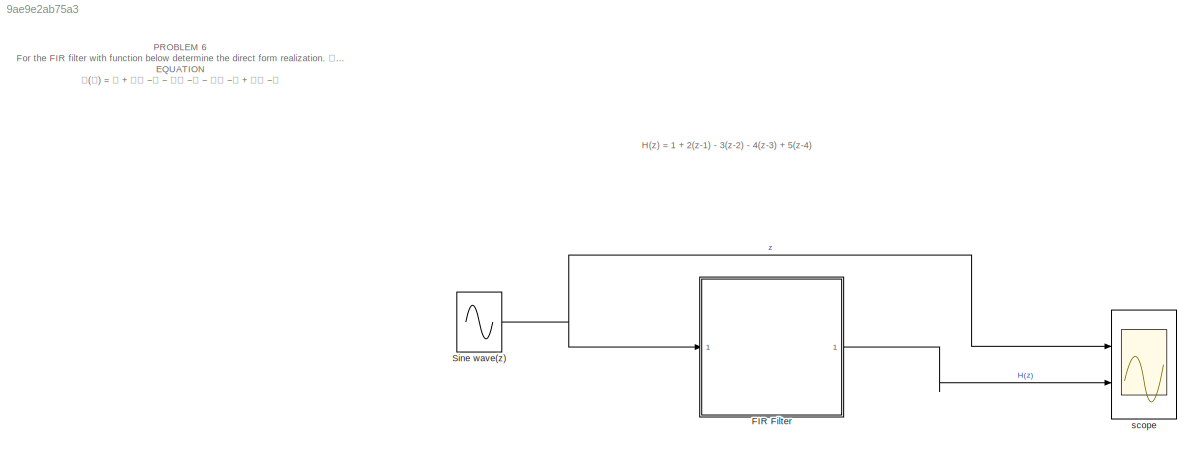
MODEL slx_9ae9e2ab75a3
KIND model
CONFIG AbsTol = auto
CONFIG EnableMultiTasking = off
CONFIG FixedStep = auto
CONFIG MaxStep = auto
CONFIG MinStep = auto
CONFIG RelTol = 1e-3
CONFIG SampleTimeConstraint = Unconstrained
CONFIG SolverName = VariableStepAuto
CONFIG StartTime = 0.0
CONFIG StopTime = 10.0
WORKSPACE source: mxarray member
WORKSPACE a1 = 2
WORKSPACE a2 = -3
WORKSPACE a3 = -4
WORKSPACE a4 = 5
BLOCK [ModelReference] FIR Filter
  ModelNameDialog = FIR_Filter
  ModelReferenceVersion = 1.14
  Ports = [1, 1]
BLOCK [Sin] Sine wave(z)
  Ports = [0, 1]
  SampleTime = 0
BLOCK [Scope] scope
  Floating = off
  NumInputPorts = 2
  Ports = [2]
  ScopeSpecificationString = Simulink.scopes.TimeScopeBlockCfg('CurrentConfiguration', extmgr.ConfigurationSet(extmgr.Configuration('Core','General UI',true),extmgr.Configuration('Core','Source UI',true),extmgr.Configuration('Sources','WiredSimulink',true),extmgr.Configuration('Visuals','Time Domain',true,'SerializedDisplays',{struct('MinYLimReal','-1.24563','MaxYLimReal','1.24904','YLabelReal','','MinYLimMag','0.00000','MaxY...<+1935ch>
ANNOTATION (root): PROBLEM 6 For the FIR filter with function below determine the direct form realization. 𝐇(𝐳) = 𝟏 + 𝟐𝐳 −𝟏 − 𝟑𝐳 −𝟐 − 𝟒𝐳 −𝟑 + 𝟓𝐳 −𝟒 Build this filter using basic building blocks in Simulink. Make this a reference model. EQUATION 𝐇(𝐳) = 𝟏 + 𝟐𝐳 −𝟏 − 𝟑𝐳 −𝟐 − 𝟒𝐳 −𝟑 + 𝟓𝐳 −𝟒
ANNOTATION (root): H(z) = 1 + 2(z-1) - 3(z-2) - 4(z-3) + 5(z-4)
LINE FIR Filter:1 -> scope:2
NET Sine wave(z):1 -> FIR Filter:1, scope:1
note: NET lines group one-source signal fan-out (src -> all destinations, sorted); 1:1 wires keep LINE
